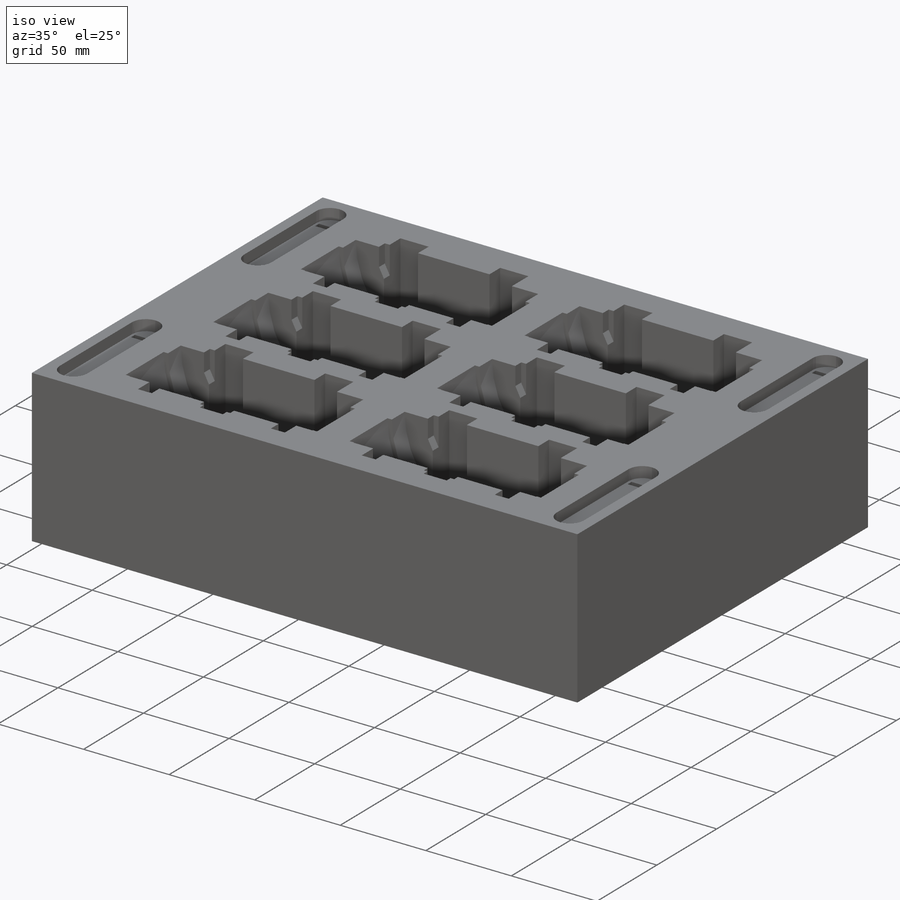
[diagram: iso view]
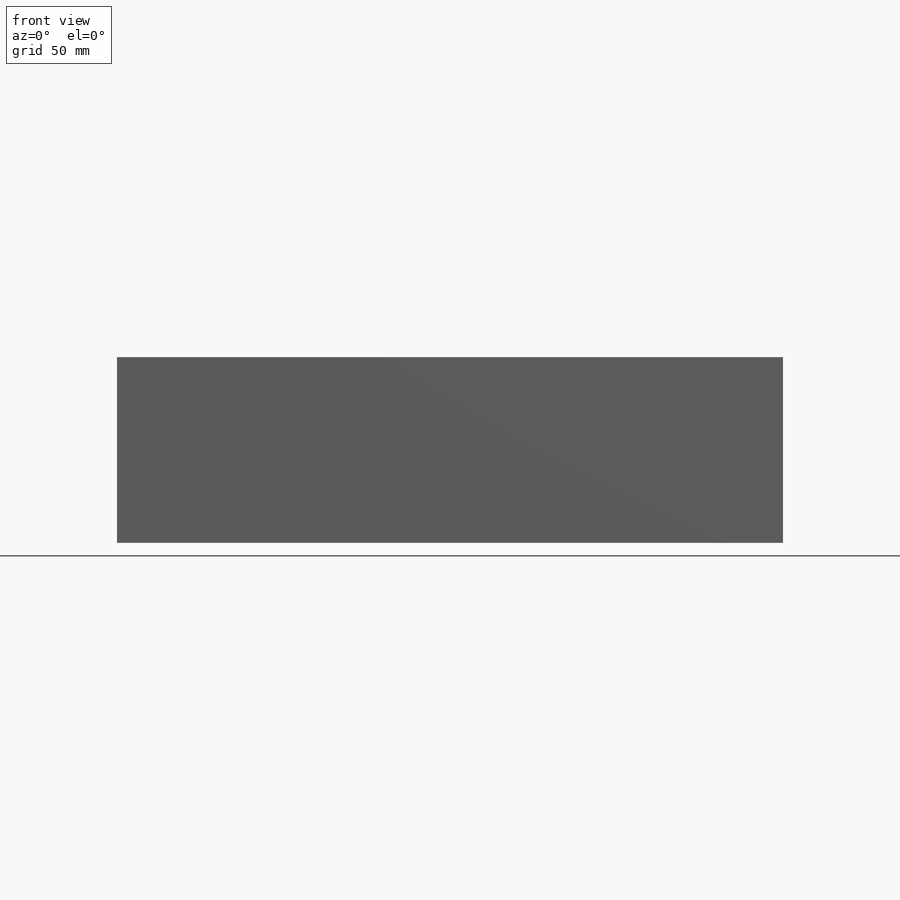
[diagram: front view]
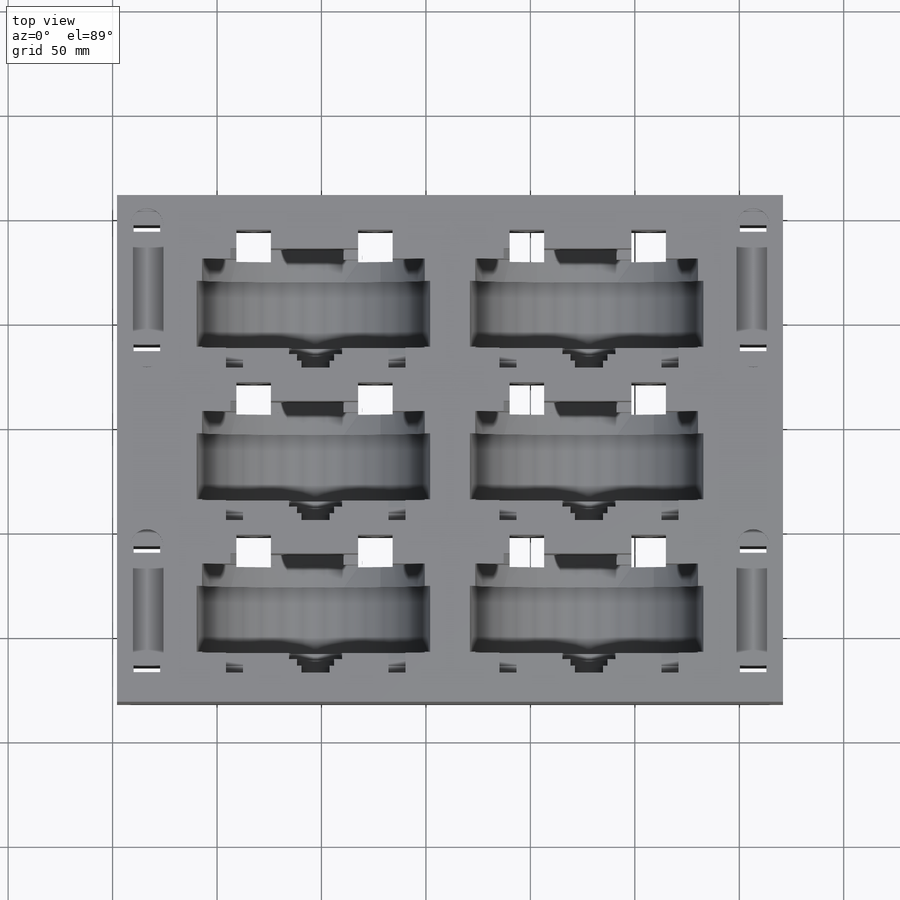
[diagram: top view]
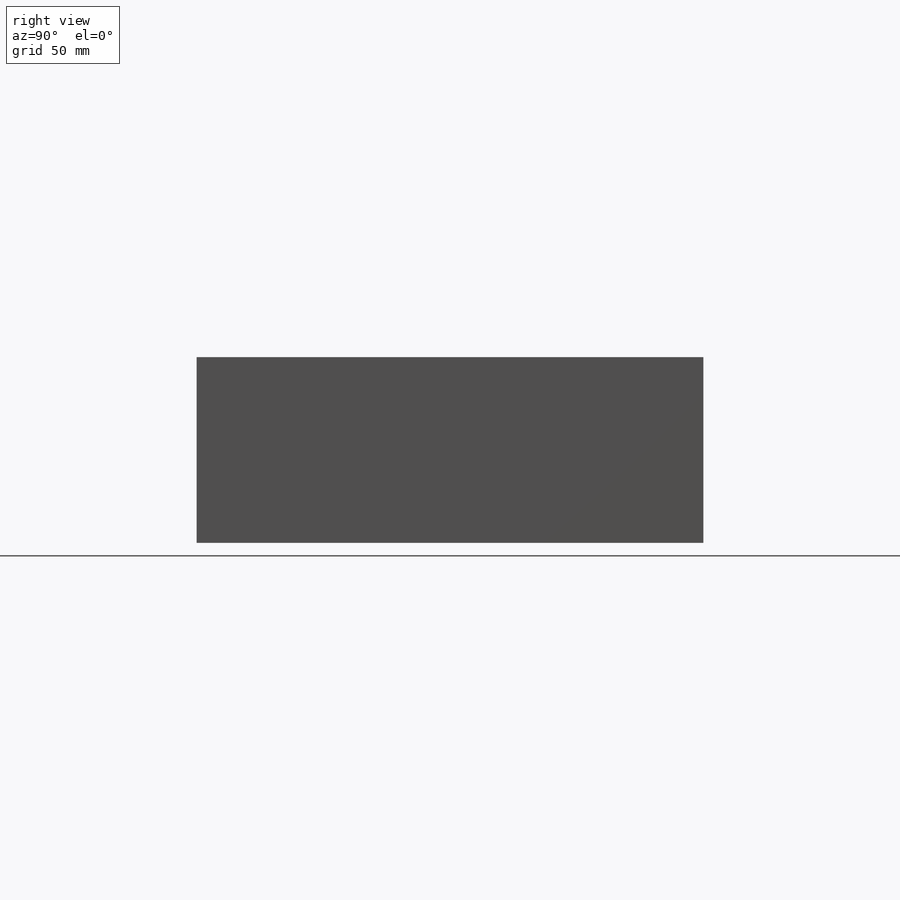
[diagram: right view]
SOLIDWORKS PART (.sldprt)
format: sldprt  version: not decoded by parser v0  size: 1,173,504 bytes
history: native  units: mm
features: extrude x25, sketch x5, plane x4, cut_extrude x3, mirror x2, material x1, pattern_linear x1, fillet x1 (+13 scaffold rows collapsed; 1 parser-record rows omitted)
feature tree (56):
  scaffold x13  (default folders/planes/origin — collapsed)
  material  "Material <not specified>"
  sketch  "Spacing"  dims[c1.D20=25.4mm c1.D21=25.4mm c1.D22=12.7mm c1.D1=111.76mm c1.D2=63.5mm c1.D3=19.05mm c1.D4=12.7mm c1.D5=12.7mm c1.D6=12.7mm c1.D9=19.05mm c1.D10=12.7mm c1.D11=38.1mm c1.D12=38.1mm c1.D13=0.0mm c1.D14=0.0mm c1.D15=25.4mm c1.D16=25.4mm c1.D17=25.4mm c1.D18=25.4mm c1.D19=25.4mm c2.D20=25.4mm c2.D21=25.4mm c2.D17=25.4mm c2.D18=6.35mm c2.D13=0.0mm c2.D3=19.05mm c2.D4=10.16mm c2.D5=0.0mm c2.D6=63.5mm c2.D7=2.0 c2.D8=3.0]
  extrude  "Foam"  Depth=88.9mm
  extrude  "toastModel<1>@Foam assy temp 2/toastSmall<1>@toastModel2"  [1 undecoded]
  extrude  "toastModel<1>@Foam assy temp 2/toastTop<1>@toastModel2"  [1 undecoded]
  extrude  "toastModel<1>@Foam assy temp 2/toastBottom<1>@toastModel2"  [1 undecoded]
  extrude  "toastModel<10>@Foam assy temp 2/toastBig<1>@toastModel2"  [1 undecoded]
  extrude  "toastModel<10>@Foam assy temp 2/toastSmall<1>@toastModel2"  [1 undecoded]
  extrude  "toastModel<10>@Foam assy temp 2/toastTop<1>@toastModel2"  [1 undecoded]
  extrude  "toastModel<10>@Foam assy temp 2/toastBottom<1>@toastModel2"  [1 undecoded]
  extrude  "toastModel<11>@Foam assy temp 2/toastBig<1>@toastModel2"  [1 undecoded]
  extrude  "toastModel<11>@Foam assy temp 2/toastSmall<1>@toastModel2"  [1 undecoded]
  extrude  "toastModel<11>@Foam assy temp 2/toastTop<1>@toastModel2"  [1 undecoded]
  extrude  "toastModel<11>@Foam assy temp 2/toastBottom<1>@toastModel2"  [1 undecoded]
  extrude  "toastModel<12>@Foam assy temp 2/toastBig<1>@toastModel2"  [1 undecoded]
  extrude  "toastModel<12>@Foam assy temp 2/toastSmall<1>@toastModel2"  [1 undecoded]
  extrude  "toastModel<12>@Foam assy temp 2/toastTop<1>@toastModel2"  [1 undecoded]
  extrude  "toastModel<12>@Foam assy temp 2/toastBottom<1>@toastModel2"  [1 undecoded]
  extrude  "toastModel<13>@Foam assy temp 2/toastBig<1>@toastModel2"  [1 undecoded]
  extrude  "toastModel<13>@Foam assy temp 2/toastSmall<1>@toastModel2"  [1 undecoded]
  extrude  "toastModel<13>@Foam assy temp 2/toastTop<1>@toastModel2"  [1 undecoded]
  extrude  "toastModel<13>@Foam assy temp 2/toastBottom<1>@toastModel2"  [1 undecoded]
  extrude  "toastModel<14>@Foam assy temp 2/toastBig<1>@toastModel2"  [1 undecoded]
  extrude  "toastModel<14>@Foam assy temp 2/toastSmall<1>@toastModel2"  [1 undecoded]
  extrude  "toastModel<14>@Foam assy temp 2/toastTop<1>@toastModel2"  [1 undecoded]
  extrude  "toastModel<14>@Foam assy temp 2/toastBottom<1>@toastModel2"  [1 undecoded]
  parser-record x1  (decoder bookkeeping rows leaked as tree rows — omitted from the tree; the rows remain in map.json)
  plane  "Plane1"  Offset=25.4mm
  sketch  "Sketch7"  dims[D1=8.6e-05mm]
  extrude  "Boss-Extrude2"  Depth=1.27mm
  pattern_linear  "LPattern1"  Count1=2 Count2=3 Spacing1=124.46mm Spacing2=76.2mm
  plane  "Plane4"  Offset=44.45mm
  plane  "Plane6"  Offset=121.285mm
  plane  "Plane5"  Offset=159.385mm
  sketch  "Sketch12"  dims[c1.D1=16.51mm c1.D2=14.732mm c1.D3=14.732mm c1.D4=16.51mm c1.D5=16.51mm c2.D5=2.0 c2.D6=3.0]
  cut_extrude  "holes for prongs"  Depth=88.9mm
  sketch  "Sketch13"  dims[D1=15.875mm D2=6.35mm D3=6.35mm D4=76.2mm]
  cut_extrude  "ziptie cavity"  Depth=6.35mm
  fillet  "Fillet1"  Radius=7.9375mm
  sketch  "Sketch14"  dims[D1=12.7mm D2=12.7mm D3=0.0mm D4=0.0mm D5=0.0mm D6=0.0mm D7=3.175mm D8=3.175mm]
  cut_extrude  "ziptie holes"  Depth=88.9mm
  mirror  "Mirror1"
  mirror  "Mirror2"
decode coverage: 12 of 37 modeling features carry decoded parameters
note: 23 parameter values undecoded
summary: no parameter record found for 23 features
note: suppression state not decoded; provenance and decode notes live in map.json
